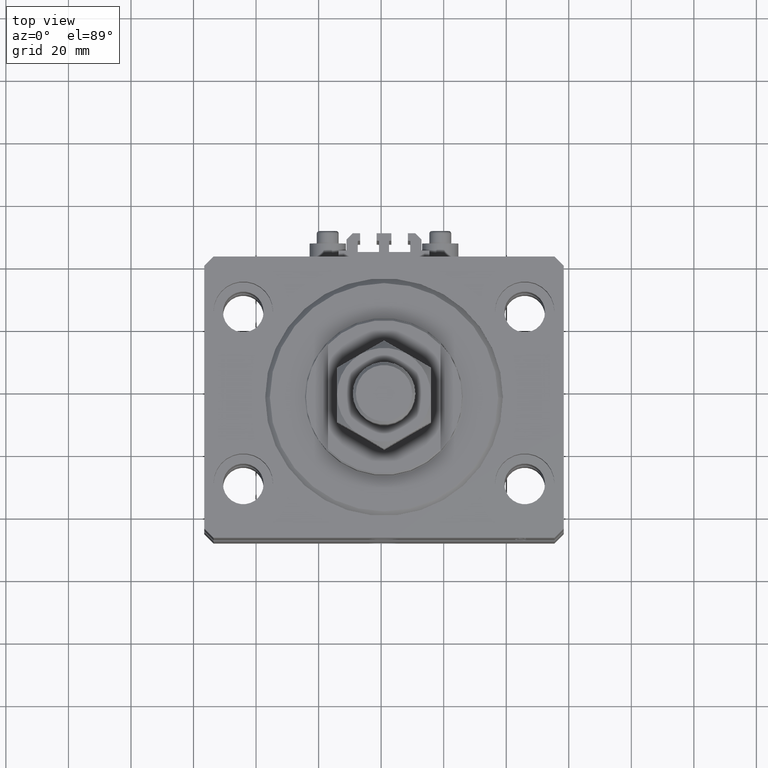
[diagram: clean part render]
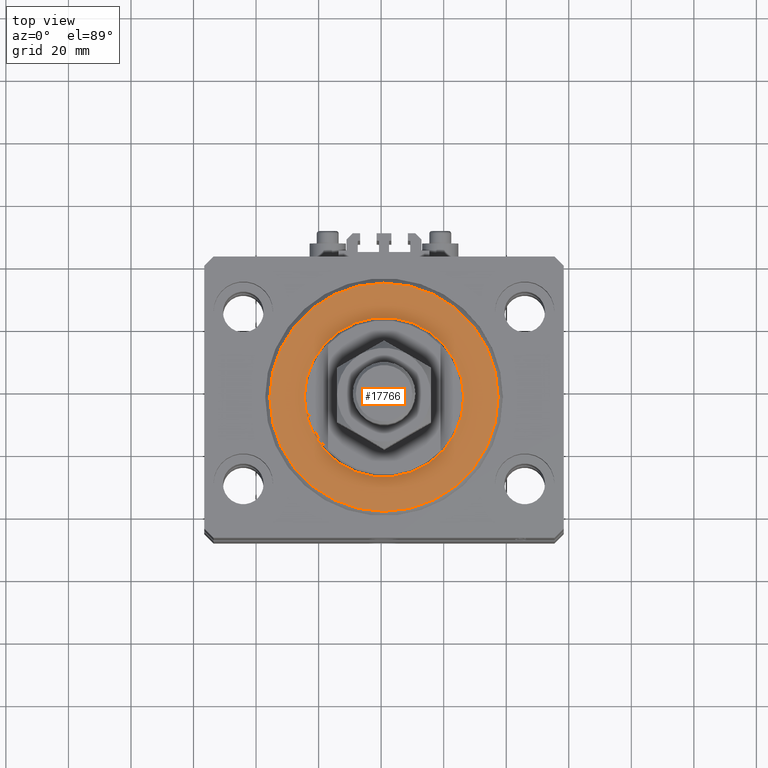
[diagram: same view with one face highlighted and labeled with its STEP entity id]
A machine part, top view. The second image highlights one B-rep face of the part: STEP entity #17766.
In plain terms, the highlighted planar face has unit normal (0, 0, -1).
Its self-contained STEP definition (entity closure, byte-faithful):
#1499 = ORIENTED_EDGE ( 'NONE', *, *, #48149, .T. ) ;
#1712 = VERTEX_POINT ( 'NONE', #22669 ) ;
#1876 = DIRECTION ( 'NONE',  ( -0.000000000000000000, -0.000000000000000000, -1.000000000000000000 ) ) ;
#1975 = CIRCLE ( 'NONE', #11038, 25.50000000000000355 ) ;
#3603 = EDGE_CURVE ( 'NONE', #1712, #16378, #7877, .T. ) ;
#4804 = VERTEX_POINT ( 'NONE', #12033 ) ;
#6178 = ORIENTED_EDGE ( 'NONE', *, *, #3603, .T. ) ;
#6508 = AXIS2_PLACEMENT_3D ( 'NONE', #9216, #25371, #25883 ) ;
#6613 = CIRCLE ( 'NONE', #20528, 36.50000000000000000 ) ;
#7877 = CIRCLE ( 'NONE', #36569, 25.50000000000000355 ) ;
#9216 = CARTESIAN_POINT ( 'NONE',  ( 0.000000000000000000, 0.000000000000000000, 0.000000000000000000 ) ) ;
#9464 = PLANE ( 'NONE',  #6508 ) ;
#11038 = AXIS2_PLACEMENT_3D ( 'NONE', #24149, #16707, #17461 ) ;
#12033 = CARTESIAN_POINT ( 'NONE',  ( -36.50000000000000000, 4.561809326823889791E-15, 0.000000000000000000 ) ) ;
#13688 = CARTESIAN_POINT ( 'NONE',  ( 0.000000000000000000, 0.000000000000000000, 0.000000000000000000 ) ) ;
#14504 = EDGE_LOOP ( 'NONE', ( #34209, #6178 ) ) ;
#14793 = CARTESIAN_POINT ( 'NONE',  ( 0.000000000000000000, 0.000000000000000000, 0.000000000000000000 ) ) ;
#16150 = EDGE_LOOP ( 'NONE', ( #40507, #1499 ) ) ;
#16378 = VERTEX_POINT ( 'NONE', #30211 ) ;
#16707 = DIRECTION ( 'NONE',  ( 0.000000000000000000, 0.000000000000000000, 1.000000000000000000 ) ) ;
#17461 = DIRECTION ( 'NONE',  ( 1.000000000000000000, 0.000000000000000000, 0.000000000000000000 ) ) ;
#17766 = ADVANCED_FACE ( 'NONE', ( #44642, #33343 ), #9464, .F. ) ;
#20528 = AXIS2_PLACEMENT_3D ( 'NONE', #13688, #1876, #49126 ) ;
#22669 = CARTESIAN_POINT ( 'NONE',  ( -25.50000000000000355, 3.122849337825751011E-15, 2.168404344971008868E-16 ) ) ;
#24149 = CARTESIAN_POINT ( 'NONE',  ( 0.000000000000000000, 0.000000000000000000, 0.000000000000000000 ) ) ;
#25371 = DIRECTION ( 'NONE',  ( 0.000000000000000000, 0.000000000000000000, 1.000000000000000000 ) ) ;
#25883 = DIRECTION ( 'NONE',  ( 1.000000000000000000, 0.000000000000000000, -0.000000000000000000 ) ) ;
#25951 = DIRECTION ( 'NONE',  ( 1.000000000000000000, 0.000000000000000000, 0.000000000000000000 ) ) ;
#26599 = EDGE_CURVE ( 'NONE', #28844, #4804, #6613, .T. ) ;
#27120 = AXIS2_PLACEMENT_3D ( 'NONE', #14793, #42502, #38162 ) ;
#28844 = VERTEX_POINT ( 'NONE', #45163 ) ;
#30211 = CARTESIAN_POINT ( 'NONE',  ( 25.50000000000000355, 0.000000000000000000, 2.168404344971008868E-16 ) ) ;
#31203 = CIRCLE ( 'NONE', #27120, 36.50000000000000000 ) ;
#33343 = FACE_OUTER_BOUND ( 'NONE', #16150, .T. ) ;
#33912 = CARTESIAN_POINT ( 'NONE',  ( 0.000000000000000000, 0.000000000000000000, 0.000000000000000000 ) ) ;
#34209 = ORIENTED_EDGE ( 'NONE', *, *, #39328, .T. ) ;
#36569 = AXIS2_PLACEMENT_3D ( 'NONE', #33912, #37512, #25951 ) ;
#37512 = DIRECTION ( 'NONE',  ( 0.000000000000000000, 0.000000000000000000, 1.000000000000000000 ) ) ;
#38162 = DIRECTION ( 'NONE',  ( 1.000000000000000000, 0.000000000000000000, 0.000000000000000000 ) ) ;
#39328 = EDGE_CURVE ( 'NONE', #16378, #1712, #1975, .T. ) ;
#40507 = ORIENTED_EDGE ( 'NONE', *, *, #26599, .T. ) ;
#42502 = DIRECTION ( 'NONE',  ( -0.000000000000000000, -0.000000000000000000, -1.000000000000000000 ) ) ;
#44642 = FACE_BOUND ( 'NONE', #14504, .T. ) ;
#45163 = CARTESIAN_POINT ( 'NONE',  ( 36.50000000000000000, 0.000000000000000000, 0.000000000000000000 ) ) ;
#48149 = EDGE_CURVE ( 'NONE', #4804, #28844, #31203, .T. ) ;
#49126 = DIRECTION ( 'NONE',  ( 1.000000000000000000, 0.000000000000000000, 0.000000000000000000 ) ) ;